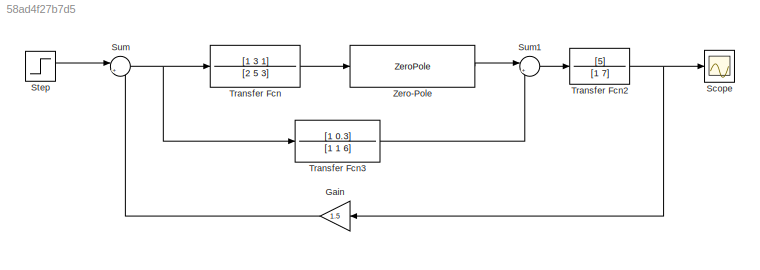
MODEL slx_58ad4f27b7d5
KIND model
CONFIG AbsTol = auto
CONFIG EnableMultiTasking = off
CONFIG FixedStep = auto
CONFIG MaxStep = auto
CONFIG MinStep = auto
CONFIG RelTol = 1e-3
CONFIG SampleTimeConstraint = Unconstrained
CONFIG Solver = VariableStepAuto
CONFIG SolverName = VariableStepAuto
CONFIG StartTime = 0.0
CONFIG StopTime = 10.0
BLOCK [Gain] Gain
  Gain = 1.5
  OutDataTypeStr = Inherit: Inherit via internal rule
  ParamDataTypeStr = Inherit: Inherit via internal rule
  SaturateOnIntegerOverflow = off
BLOCK [Scope] Scope
  Floating = off
  NumInputPorts = 1
  Ports = [1]
  ScopeSpecificationString = Simulink.scopes.TimeScopeBlockCfg('CurrentConfiguration', extmgr.ConfigurationSet(extmgr.Configuration('Core','General UI',true),extmgr.Configuration('Core','Source UI',true),extmgr.Configuration('Sources','WiredSimulink',true),extmgr.Configuration('Visuals','Time Domain',true,'SerializedDisplays',{struct('MinYLimReal','-0.02678','MaxYLimReal','0.24106','YLabelReal','','MinYLimMag','0.00000','MaxY...<+1355ch>
BLOCK [Step] Step
  SampleTime = 0
BLOCK [Sum] Sum
  IconShape = round
  InputSameDT = off
  Inputs = |+-
  OutDataTypeStr = Inherit: Inherit via internal rule
  Ports = [2, 1]
  SaturateOnIntegerOverflow = off
BLOCK [Sum] Sum1
  IconShape = round
  InputSameDT = off
  Inputs = |++
  OutDataTypeStr = Inherit: Inherit via internal rule
  Ports = [2, 1]
  SaturateOnIntegerOverflow = off
BLOCK [TransferFcn] Transfer Fcn
  Denominator = [2 5 3]
  Numerator = [1 3 1]
BLOCK [TransferFcn] Transfer Fcn2
  Denominator = [1 7]
  Numerator = [5]
BLOCK [TransferFcn] Transfer Fcn3
  Denominator = [1 1 6]
  Numerator = [1 0.3]
BLOCK [ZeroPole] Zero-Pole
  Gain = 2
  Poles = [-2 -10]
  Zeros = -1
LINE Gain:1 -> Sum:2
LINE Step:1 -> Sum:1
LINE Sum1:1 -> Transfer Fcn2:1
NET Sum:1 -> Transfer Fcn3:1, Transfer Fcn:1
NET Transfer Fcn2:1 -> Gain:1, Scope:1
LINE Transfer Fcn3:1 -> Sum1:2
LINE Transfer Fcn:1 -> Zero-Pole:1
LINE Zero-Pole:1 -> Sum1:1
note: NET lines group one-source signal fan-out (src -> all destinations, sorted); 1:1 wires keep LINE
